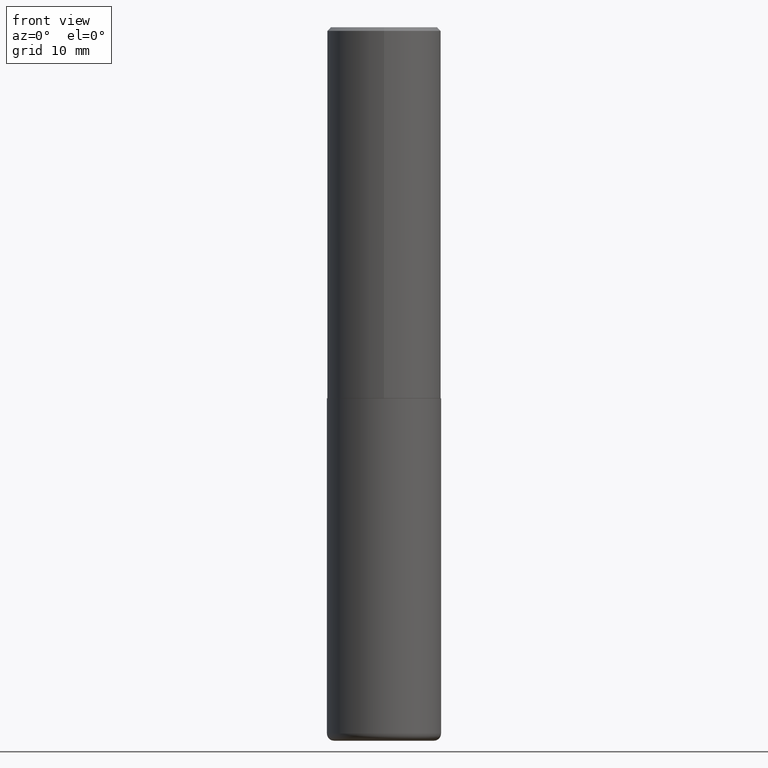
[diagram: clean part render]
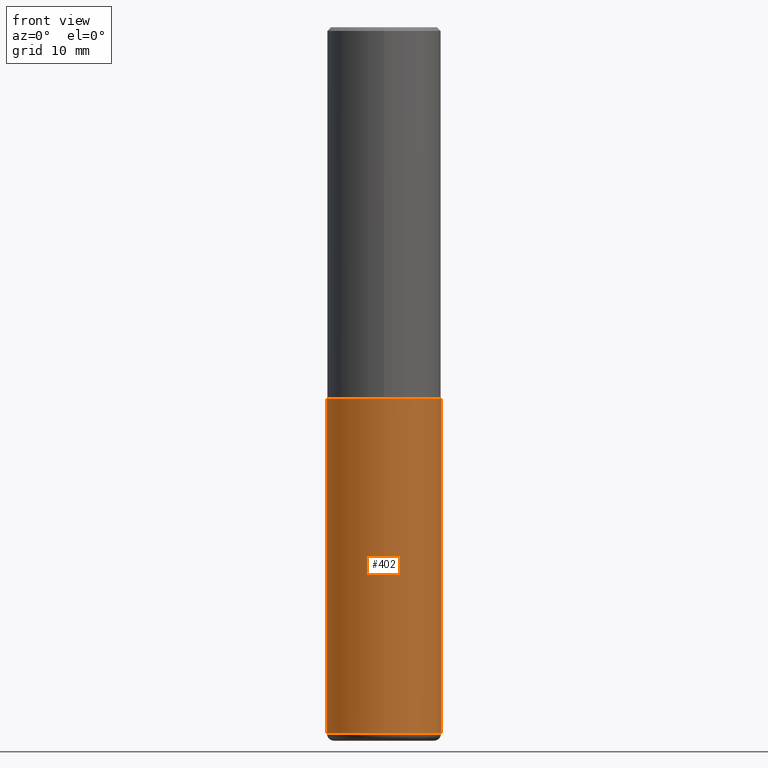
[diagram: same view with one face highlighted and labeled with its STEP entity id]
A machine part, front view. The second image highlights one B-rep face of the part: STEP entity #402.
In plain terms, the highlighted cylindrical surface (partial cylindrical patch) has radius 7.9997 mm, axis along (-0, 0, 1).
Its self-contained STEP definition (entity closure, byte-faithful):
#1 = CARTESIAN_POINT ( 'NONE',  ( 0.3149500000000000077, -1.580768176161233565E-14, -3.897600000000000176 ) ) ;
#20 = CARTESIAN_POINT ( 'NONE',  ( 9.531459218987189074E-29, -1.360839766627504420E-14, -3.897600000000000176 ) ) ;
#35 = EDGE_CURVE ( 'NONE', #63, #242, #285, .T. ) ;
#63 = VERTEX_POINT ( 'NONE', #208 ) ;
#79 = DIRECTION ( 'NONE',  ( -2.445468806185136877E-29, 3.491481338843145188E-15, 1.000000000000000000 ) ) ;
#109 = AXIS2_PLACEMENT_3D ( 'NONE', #197, #304, #143 ) ;
#113 = LINE ( 'NONE', #235, #239 ) ;
#122 = DIRECTION ( 'NONE',  ( -2.445468806185136877E-29, 3.491481338843145188E-15, 1.000000000000000000 ) ) ;
#137 = CYLINDRICAL_SURFACE ( 'NONE', #281, 0.3149500000000000077 ) ;
#143 = DIRECTION ( 'NONE',  ( 1.000000000000000000, -6.982962677686266711E-15, 0.000000000000000000 ) ) ;
#152 = DIRECTION ( 'NONE',  ( 1.000000000000000000, -6.982962677686264344E-15, 0.000000000000000000 ) ) ;
#155 = DIRECTION ( 'NONE',  ( -2.445468806185136597E-29, 3.491481338843145583E-15, 1.000000000000000000 ) ) ;
#192 = VECTOR ( 'NONE', #122, 39.37007874015748143 ) ;
#195 = DIRECTION ( 'NONE',  ( 1.000000000000000000, -6.982962677686266711E-15, 4.876176775795936353E-29 ) ) ;
#197 = CARTESIAN_POINT ( 'NONE',  ( 5.006363740022212801E-29, -7.147760596879689780E-15, -2.047200000000000575 ) ) ;
#208 = CARTESIAN_POINT ( 'NONE',  ( -0.3149500000000000077, -8.140224785300930216E-15, -2.047200000000000575 ) ) ;
#211 = CARTESIAN_POINT ( 'NONE',  ( 0.3149500000000000077, -9.347044692216979650E-15, -2.047200000000000575 ) ) ;
#212 = VERTEX_POINT ( 'NONE', #1 ) ;
#221 = ORIENTED_EDGE ( 'NONE', *, *, #35, .F. ) ;
#235 = CARTESIAN_POINT ( 'NONE',  ( 0.3149500000000000077, -2.199284095337289871E-15, 1.535751875536930130E-29 ) ) ;
#239 = VECTOR ( 'NONE', #79, 39.37007874015748143 ) ;
#240 = EDGE_CURVE ( 'NONE', #212, #242, #113, .T. ) ;
#242 = VERTEX_POINT ( 'NONE', #211 ) ;
#258 = CARTESIAN_POINT ( 'NONE',  ( 0.000000000000000000, 0.000000000000000000, 0.000000000000000000 ) ) ;
#260 = ORIENTED_EDGE ( 'NONE', *, *, #240, .T. ) ;
#272 = EDGE_CURVE ( 'NONE', #372, #212, #329, .T. ) ;
#280 = LINE ( 'NONE', #400, #192 ) ;
#281 = AXIS2_PLACEMENT_3D ( 'NONE', #258, #396, #195 ) ;
#285 = CIRCLE ( 'NONE', #109, 0.3149500000000000077 ) ;
#304 = DIRECTION ( 'NONE',  ( -2.445468806185136597E-29, 3.491481338843145583E-15, 1.000000000000000000 ) ) ;
#309 = EDGE_LOOP ( 'NONE', ( #379, #314, #260, #221 ) ) ;
#314 = ORIENTED_EDGE ( 'NONE', *, *, #272, .T. ) ;
#315 = CARTESIAN_POINT ( 'NONE',  ( -0.3149500000000000077, -1.137054331999860664E-14, -3.897600000000000176 ) ) ;
#329 = CIRCLE ( 'NONE', #408, 0.3149499999999999522 ) ;
#368 = EDGE_CURVE ( 'NONE', #372, #63, #280, .T. ) ;
#372 = VERTEX_POINT ( 'NONE', #315 ) ;
#379 = ORIENTED_EDGE ( 'NONE', *, *, #368, .F. ) ;
#396 = DIRECTION ( 'NONE',  ( -2.445468806185136597E-29, 3.491481338843145583E-15, 1.000000000000000000 ) ) ;
#400 = CARTESIAN_POINT ( 'NONE',  ( -0.3149500000000000077, 2.237854346276435590E-15, -1.549218606675782676E-29 ) ) ;
#402 = ADVANCED_FACE ( 'NONE', ( #405 ), #137, .T. ) ;
#405 = FACE_OUTER_BOUND ( 'NONE', #309, .T. ) ;
#408 = AXIS2_PLACEMENT_3D ( 'NONE', #20, #155, #152 ) ;